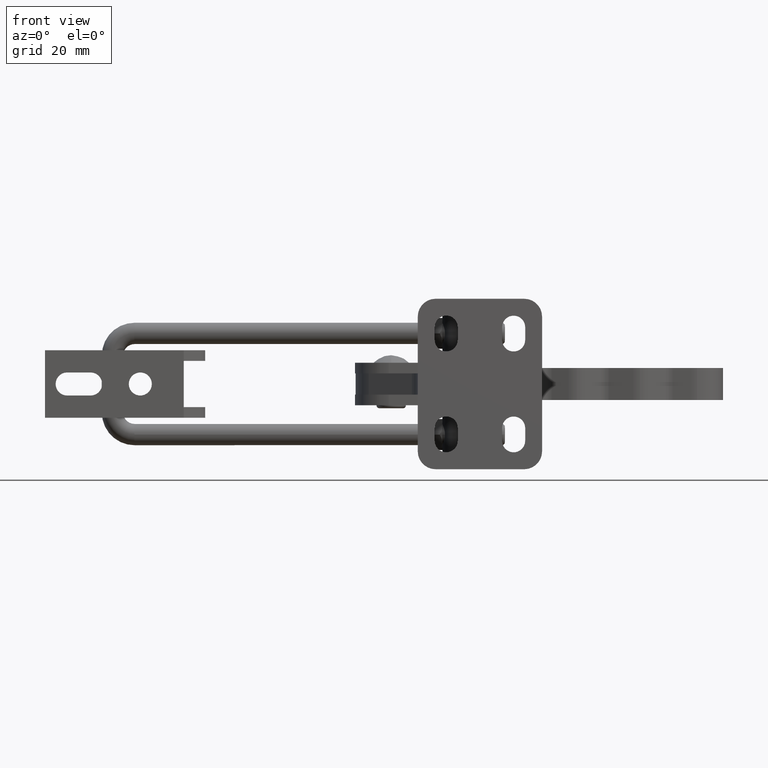
[diagram: clean part render]
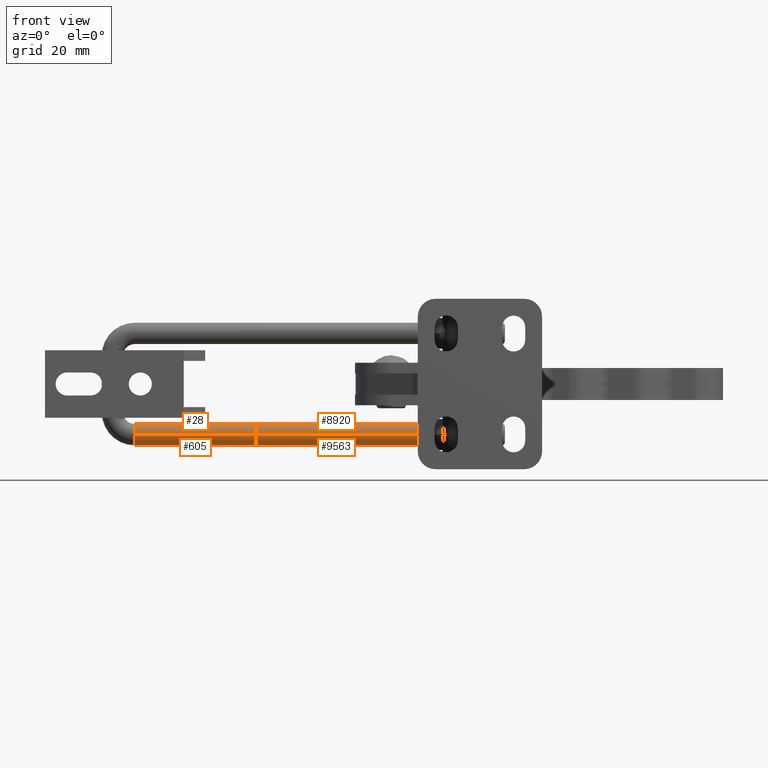
[diagram: same view with one multi-face feature highlighted, each face labeled with its STEP entity id]
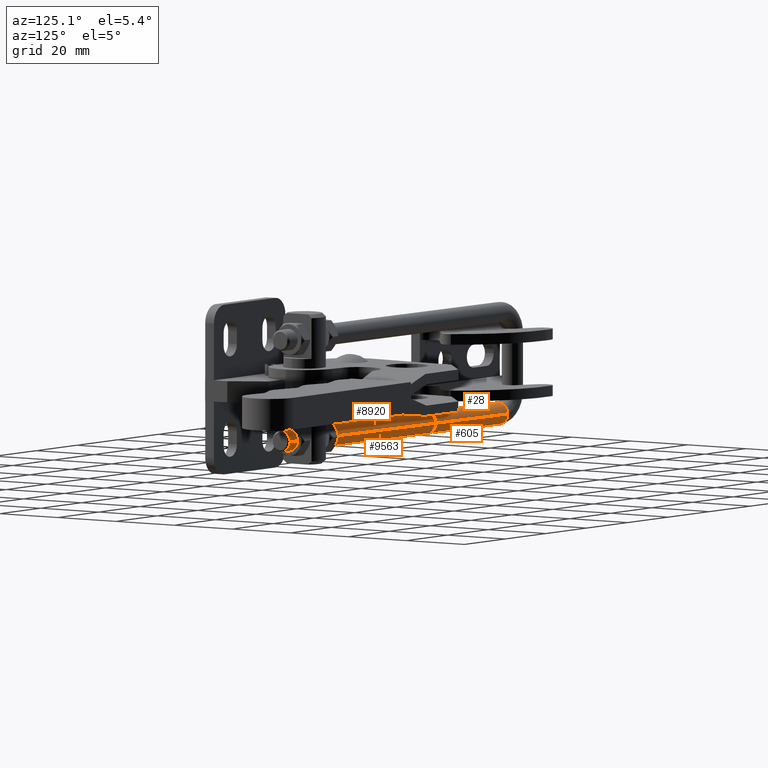
[diagram: same view with one multi-face feature highlighted, each face labeled with its STEP entity id]
A machine part, front view. The highlighted faces form ONE feature: a constant-radius fillet chain: 4 tangent blend faces with common blend radius 3 mm. The faces share edges in the B-rep.
A second angle (auxiliary view) of the same feature is appended — it is thin or edge-on in the first view.
Their STEP definitions:
[1] entity #605 (Cylinder):
#305 = CIRCLE ( 'NONE', #8057, 3.000000000000000400 ) ;
#572 = ORIENTED_EDGE ( 'NONE', *, *, #7284, .F. ) ;
#583 = CIRCLE ( 'NONE', #2443, 3.000000000000000400 ) ;
#605 = ADVANCED_FACE ( 'NONE', ( #892 ), #4617, .T. ) ;
#780 = CARTESIAN_POINT ( 'NONE',  ( -115.4081374499882500, 20.57135910459141600, -17.25000000000051900 ) ) ;
#892 = FACE_OUTER_BOUND ( 'NONE', #8518, .T. ) ;
#925 = ORIENTED_EDGE ( 'NONE', *, *, #5916, .F. ) ;
#1624 = VERTEX_POINT ( 'NONE', #1699 ) ;
#1699 = CARTESIAN_POINT ( 'NONE',  ( -115.4698850797838800, 17.57199463353849100, -14.25000000000051500 ) ) ;
#2063 = VECTOR ( 'NONE', #7595, 1000.000000000000100 ) ;
#2126 = DIRECTION ( 'NONE',  ( 0.9997881570176434500, -0.02058254326520906800, -5.444825059755399700E-017 ) ) ;
#2153 = VERTEX_POINT ( 'NONE', #5836 ) ;
#2182 = LINE ( 'NONE', #9104, #5923 ) ;
#2443 = AXIS2_PLACEMENT_3D ( 'NONE', #7489, #3002, #8240 ) ;
#2828 = CARTESIAN_POINT ( 'NONE',  ( -115.3463898201926100, 23.57072357564435100, -14.25000000000051300 ) ) ;
#2836 = DIRECTION ( 'NONE',  ( -0.9997881570176434500, 0.02058254326520906800, 3.853291467241369100E-016 ) ) ;
#3002 = DIRECTION ( 'NONE',  ( -0.9997881570176434500, 0.02058254326520906800, 3.853291467241369100E-016 ) ) ;
#3147 = DIRECTION ( 'NONE',  ( 0.9997881570176434500, -0.02058254326520906800, -2.628644668094015600E-016 ) ) ;
#3801 = DIRECTION ( 'NONE',  ( 0.9997881570176433400, -0.02058254326520906500, -2.628644668094015600E-016 ) ) ;
#4345 = AXIS2_PLACEMENT_3D ( 'NONE', #6616, #2126, #7353 ) ;
#4617 = CYLINDRICAL_SURFACE ( 'NONE', #9047, 3.000000000000000400 ) ;
#4972 = DIRECTION ( 'NONE',  ( 0.02058254326521106300, 0.9997881570176433400, 5.782411586589355700E-016 ) ) ;
#5045 = ORIENTED_EDGE ( 'NONE', *, *, #9688, .F. ) ;
#5461 = CIRCLE ( 'NONE', #4345, 3.000000000000000900 ) ;
#5487 = VERTEX_POINT ( 'NONE', #8960 ) ;
#5540 = VERTEX_POINT ( 'NONE', #780 ) ;
#5747 = ORIENTED_EDGE ( 'NONE', *, *, #8401, .F. ) ;
#5836 = CARTESIAN_POINT ( 'NONE',  ( -81.23984987408560700, 16.86730416921797700, -14.25000000000052400 ) ) ;
#5916 = EDGE_CURVE ( 'NONE', #2153, #5487, #5461, .T. ) ;
#5923 = VECTOR ( 'NONE', #3801, 1000.000000000000100 ) ;
#6616 = CARTESIAN_POINT ( 'NONE',  ( -81.17810224428997400, 19.86666864027090500, -14.25000000000052600 ) ) ;
#6867 = CARTESIAN_POINT ( 'NONE',  ( -115.4698850797838800, 17.57199463353849100, -14.25000000000051500 ) ) ;
#6892 = CARTESIAN_POINT ( 'NONE',  ( -115.4081374499882500, 20.57135910459141900, -14.25000000000051500 ) ) ;
#7284 = EDGE_CURVE ( 'NONE', #9048, #5540, #305, .T. ) ;
#7335 = CARTESIAN_POINT ( 'NONE',  ( -115.4081374499882500, 20.57135910459141900, -14.25000000000051500 ) ) ;
#7353 = DIRECTION ( 'NONE',  ( 0.0000000000000000000, 0.0000000000000000000, 1.000000000000000000 ) ) ;
#7489 = CARTESIAN_POINT ( 'NONE',  ( -115.4081374499882500, 20.57135910459141900, -14.25000000000051500 ) ) ;
#7523 = EDGE_CURVE ( 'NONE', #9048, #5487, #2182, .T. ) ;
#7595 = DIRECTION ( 'NONE',  ( 0.9997881570176433400, -0.02058254326520906500, -2.628644668094015600E-016 ) ) ;
#7698 = ORIENTED_EDGE ( 'NONE', *, *, #7523, .T. ) ;
#8020 = LINE ( 'NONE', #6867, #2063 ) ;
#8057 = AXIS2_PLACEMENT_3D ( 'NONE', #7335, #2836, #8078 ) ;
#8078 = DIRECTION ( 'NONE',  ( 0.02058254326521106300, 0.9997881570176433400, 5.782411586589355700E-016 ) ) ;
#8240 = DIRECTION ( 'NONE',  ( 0.02058254326521106300, 0.9997881570176433400, 5.782411586589355700E-016 ) ) ;
#8401 = EDGE_CURVE ( 'NONE', #1624, #2153, #8020, .T. ) ;
#8518 = EDGE_LOOP ( 'NONE', ( #5747, #5045, #572, #7698, #925 ) ) ;
#8960 = CARTESIAN_POINT ( 'NONE',  ( -81.11635461449434100, 22.86603311132383700, -14.25000000000052200 ) ) ;
#9047 = AXIS2_PLACEMENT_3D ( 'NONE', #6892, #3147, #4972 ) ;
#9048 = VERTEX_POINT ( 'NONE', #2828 ) ;
#9104 = CARTESIAN_POINT ( 'NONE',  ( -115.3463898201926100, 23.57072357564435100, -14.25000000000051300 ) ) ;
#9688 = EDGE_CURVE ( 'NONE', #5540, #1624, #583, .T. ) ;
[2] entity #9563 (Cylinder):
#307 = EDGE_CURVE ( 'NONE', #5487, #2397, #1015, .T. ) ;
#610 = DIRECTION ( 'NONE',  ( 0.9997881570176433400, -0.02058254326520906500, -2.628644668094015600E-016 ) ) ;
#681 = ORIENTED_EDGE ( 'NONE', *, *, #1174, .F. ) ;
#1015 = LINE ( 'NONE', #6583, #8739 ) ;
#1174 = EDGE_CURVE ( 'NONE', #2153, #1506, #4375, .T. ) ;
#1435 = DIRECTION ( 'NONE',  ( 0.9997881570176433400, -0.02058254326520906500, -2.628644668094015600E-016 ) ) ;
#1506 = VERTEX_POINT ( 'NONE', #5100 ) ;
#1516 = CARTESIAN_POINT ( 'NONE',  ( -11.62107982019796800, 21.43534052895915600, -14.25000000000054200 ) ) ;
#2126 = DIRECTION ( 'NONE',  ( 0.9997881570176434500, -0.02058254326520906800, -5.444825059755399700E-017 ) ) ;
#2153 = VERTEX_POINT ( 'NONE', #5836 ) ;
#2397 = VERTEX_POINT ( 'NONE', #1516 ) ;
#2767 = EDGE_CURVE ( 'NONE', #2397, #1506, #7291, .T. ) ;
#3696 = ORIENTED_EDGE ( 'NONE', *, *, #2767, .T. ) ;
#3812 = DIRECTION ( 'NONE',  ( -0.9997881570176434500, 0.02058254326520906800, 2.628644668094015600E-016 ) ) ;
#4145 = VECTOR ( 'NONE', #1435, 1000.000000000000100 ) ;
#4171 = CARTESIAN_POINT ( 'NONE',  ( -115.4081374499882500, 20.57135910459141900, -14.25000000000051500 ) ) ;
#4176 = ORIENTED_EDGE ( 'NONE', *, *, #5916, .T. ) ;
#4345 = AXIS2_PLACEMENT_3D ( 'NONE', #6616, #2126, #7353 ) ;
#4375 = LINE ( 'NONE', #5973, #4145 ) ;
#4890 = CYLINDRICAL_SURFACE ( 'NONE', #6483, 3.000000000000000400 ) ;
#5012 = EDGE_LOOP ( 'NONE', ( #681, #4176, #9835, #3696 ) ) ;
#5100 = CARTESIAN_POINT ( 'NONE',  ( -11.74457507978920700, 15.43661158685329200, -14.25000000000054400 ) ) ;
#5126 = FACE_OUTER_BOUND ( 'NONE', #5012, .T. ) ;
#5461 = CIRCLE ( 'NONE', #4345, 3.000000000000000900 ) ;
#5487 = VERTEX_POINT ( 'NONE', #8960 ) ;
#5687 = DIRECTION ( 'NONE',  ( 0.9997881570176434500, -0.02058254326520906800, -2.628644668094015600E-016 ) ) ;
#5836 = CARTESIAN_POINT ( 'NONE',  ( -81.23984987408560700, 16.86730416921797700, -14.25000000000052400 ) ) ;
#5916 = EDGE_CURVE ( 'NONE', #2153, #5487, #5461, .T. ) ;
#5973 = CARTESIAN_POINT ( 'NONE',  ( -115.4698850797838800, 17.57199463353849100, -14.25000000000051500 ) ) ;
#6483 = AXIS2_PLACEMENT_3D ( 'NONE', #4171, #5687, #8661 ) ;
#6583 = CARTESIAN_POINT ( 'NONE',  ( -115.3463898201926100, 23.57072357564435100, -14.25000000000051300 ) ) ;
#6616 = CARTESIAN_POINT ( 'NONE',  ( -81.17810224428997400, 19.86666864027090500, -14.25000000000052600 ) ) ;
#7291 = CIRCLE ( 'NONE', #7521, 3.000000000000000400 ) ;
#7353 = DIRECTION ( 'NONE',  ( 0.0000000000000000000, 0.0000000000000000000, 1.000000000000000000 ) ) ;
#7521 = AXIS2_PLACEMENT_3D ( 'NONE', #8322, #3812, #9123 ) ;
#8322 = CARTESIAN_POINT ( 'NONE',  ( -11.68282744999358700, 18.43597605790622400, -14.25000000000054400 ) ) ;
#8661 = DIRECTION ( 'NONE',  ( 0.02058254326521106300, 0.9997881570176433400, 5.782411586589355700E-016 ) ) ;
#8739 = VECTOR ( 'NONE', #610, 1000.000000000000100 ) ;
#8960 = CARTESIAN_POINT ( 'NONE',  ( -81.11635461449434100, 22.86603311132383700, -14.25000000000052200 ) ) ;
#9123 = DIRECTION ( 'NONE',  ( 0.02058254326520932800, 0.9997881570176433400, 5.782411586589355700E-016 ) ) ;
#9563 = ADVANCED_FACE ( 'NONE', ( #5126 ), #4890, .T. ) ;
#9835 = ORIENTED_EDGE ( 'NONE', *, *, #307, .T. ) ;
[3] entity #8920 (Cylinder):
#58 = AXIS2_PLACEMENT_3D ( 'NONE', #1386, #2545, #3888 ) ;
#152 = ORIENTED_EDGE ( 'NONE', *, *, #1174, .T. ) ;
#307 = EDGE_CURVE ( 'NONE', #5487, #2397, #1015, .T. ) ;
#610 = DIRECTION ( 'NONE',  ( 0.9997881570176433400, -0.02058254326520906500, -2.628644668094015600E-016 ) ) ;
#1015 = LINE ( 'NONE', #6583, #8739 ) ;
#1174 = EDGE_CURVE ( 'NONE', #2153, #1506, #4375, .T. ) ;
#1291 = DIRECTION ( 'NONE',  ( 0.9997881570176434500, -0.02058254326520906800, -5.444825059755399700E-017 ) ) ;
#1386 = CARTESIAN_POINT ( 'NONE',  ( -11.68282744999358700, 18.43597605790622400, -14.25000000000054400 ) ) ;
#1435 = DIRECTION ( 'NONE',  ( 0.9997881570176433400, -0.02058254326520906500, -2.628644668094015600E-016 ) ) ;
#1506 = VERTEX_POINT ( 'NONE', #5100 ) ;
#1516 = CARTESIAN_POINT ( 'NONE',  ( -11.62107982019796800, 21.43534052895915600, -14.25000000000054200 ) ) ;
#1850 = EDGE_CURVE ( 'NONE', #1506, #2397, #3772, .T. ) ;
#2107 = ORIENTED_EDGE ( 'NONE', *, *, #1850, .T. ) ;
#2153 = VERTEX_POINT ( 'NONE', #5836 ) ;
#2397 = VERTEX_POINT ( 'NONE', #1516 ) ;
#2545 = DIRECTION ( 'NONE',  ( -0.9997881570176434500, 0.02058254326520906800, 2.628644668094015600E-016 ) ) ;
#2547 = EDGE_CURVE ( 'NONE', #5487, #2153, #7417, .T. ) ;
#3772 = CIRCLE ( 'NONE', #58, 3.000000000000000400 ) ;
#3888 = DIRECTION ( 'NONE',  ( 0.02058254326520932800, 0.9997881570176433400, 5.782411586589355700E-016 ) ) ;
#4145 = VECTOR ( 'NONE', #1435, 1000.000000000000100 ) ;
#4375 = LINE ( 'NONE', #5973, #4145 ) ;
#4743 = CARTESIAN_POINT ( 'NONE',  ( -115.4081374499882500, 20.57135910459141900, -14.25000000000051500 ) ) ;
#4772 = DIRECTION ( 'NONE',  ( 0.02058254326521106300, 0.9997881570176433400, 5.782411586589355700E-016 ) ) ;
#5100 = CARTESIAN_POINT ( 'NONE',  ( -11.74457507978920700, 15.43661158685329200, -14.25000000000054400 ) ) ;
#5206 = EDGE_LOOP ( 'NONE', ( #9326, #152, #2107, #6935 ) ) ;
#5487 = VERTEX_POINT ( 'NONE', #8960 ) ;
#5544 = DIRECTION ( 'NONE',  ( 0.9997881570176434500, -0.02058254326520906800, -2.628644668094015600E-016 ) ) ;
#5648 = CYLINDRICAL_SURFACE ( 'NONE', #8610, 3.000000000000000400 ) ;
#5768 = CARTESIAN_POINT ( 'NONE',  ( -81.17810224428997400, 19.86666864027090500, -14.25000000000052600 ) ) ;
#5836 = CARTESIAN_POINT ( 'NONE',  ( -81.23984987408560700, 16.86730416921797700, -14.25000000000052400 ) ) ;
#5973 = CARTESIAN_POINT ( 'NONE',  ( -115.4698850797838800, 17.57199463353849100, -14.25000000000051500 ) ) ;
#6541 = DIRECTION ( 'NONE',  ( 0.0000000000000000000, 0.0000000000000000000, 1.000000000000000000 ) ) ;
#6583 = CARTESIAN_POINT ( 'NONE',  ( -115.3463898201926100, 23.57072357564435100, -14.25000000000051300 ) ) ;
#6935 = ORIENTED_EDGE ( 'NONE', *, *, #307, .F. ) ;
#7417 = CIRCLE ( 'NONE', #7882, 3.000000000000000900 ) ;
#7882 = AXIS2_PLACEMENT_3D ( 'NONE', #5768, #1291, #6541 ) ;
#7883 = FACE_OUTER_BOUND ( 'NONE', #5206, .T. ) ;
#8610 = AXIS2_PLACEMENT_3D ( 'NONE', #4743, #5544, #4772 ) ;
#8739 = VECTOR ( 'NONE', #610, 1000.000000000000100 ) ;
#8920 = ADVANCED_FACE ( 'NONE', ( #7883 ), #5648, .T. ) ;
#8960 = CARTESIAN_POINT ( 'NONE',  ( -81.11635461449434100, 22.86603311132383700, -14.25000000000052200 ) ) ;
#9326 = ORIENTED_EDGE ( 'NONE', *, *, #2547, .T. ) ;
[4] entity #28 (Cylinder):
#28 = ADVANCED_FACE ( 'NONE', ( #98 ), #3577, .T. ) ;
#98 = FACE_OUTER_BOUND ( 'NONE', #2445, .T. ) ;
#378 = ORIENTED_EDGE ( 'NONE', *, *, #8401, .T. ) ;
#1291 = DIRECTION ( 'NONE',  ( 0.9997881570176434500, -0.02058254326520906800, -5.444825059755399700E-017 ) ) ;
#1355 = ORIENTED_EDGE ( 'NONE', *, *, #7523, .F. ) ;
#1474 = CIRCLE ( 'NONE', #8407, 3.000000000000000400 ) ;
#1624 = VERTEX_POINT ( 'NONE', #1699 ) ;
#1699 = CARTESIAN_POINT ( 'NONE',  ( -115.4698850797838800, 17.57199463353849100, -14.25000000000051500 ) ) ;
#1806 = CARTESIAN_POINT ( 'NONE',  ( -115.4081374499882500, 20.57135910459141900, -14.25000000000051500 ) ) ;
#2063 = VECTOR ( 'NONE', #7595, 1000.000000000000100 ) ;
#2153 = VERTEX_POINT ( 'NONE', #5836 ) ;
#2182 = LINE ( 'NONE', #9104, #5923 ) ;
#2445 = EDGE_LOOP ( 'NONE', ( #7491, #378, #9812, #1355, #3999 ) ) ;
#2540 = DIRECTION ( 'NONE',  ( 0.02058254326521106300, 0.9997881570176433400, 5.782411586589355700E-016 ) ) ;
#2547 = EDGE_CURVE ( 'NONE', #5487, #2153, #7417, .T. ) ;
#2700 = CARTESIAN_POINT ( 'NONE',  ( -115.4081374499882500, 20.57135910459141900, -14.25000000000051500 ) ) ;
#2828 = CARTESIAN_POINT ( 'NONE',  ( -115.3463898201926100, 23.57072357564435100, -14.25000000000051300 ) ) ;
#3447 = DIRECTION ( 'NONE',  ( 0.02058254326521106300, 0.9997881570176433400, 5.782411586589355700E-016 ) ) ;
#3577 = CYLINDRICAL_SURFACE ( 'NONE', #3649, 3.000000000000000400 ) ;
#3649 = AXIS2_PLACEMENT_3D ( 'NONE', #4053, #5531, #7859 ) ;
#3801 = DIRECTION ( 'NONE',  ( 0.9997881570176433400, -0.02058254326520906500, -2.628644668094015600E-016 ) ) ;
#3999 = ORIENTED_EDGE ( 'NONE', *, *, #7653, .F. ) ;
#4053 = CARTESIAN_POINT ( 'NONE',  ( -115.4081374499882500, 20.57135910459141900, -14.25000000000051500 ) ) ;
#5487 = VERTEX_POINT ( 'NONE', #8960 ) ;
#5531 = DIRECTION ( 'NONE',  ( 0.9997881570176434500, -0.02058254326520906800, -2.628644668094015600E-016 ) ) ;
#5768 = CARTESIAN_POINT ( 'NONE',  ( -81.17810224428997400, 19.86666864027090500, -14.25000000000052600 ) ) ;
#5836 = CARTESIAN_POINT ( 'NONE',  ( -81.23984987408560700, 16.86730416921797700, -14.25000000000052400 ) ) ;
#5923 = VECTOR ( 'NONE', #3801, 1000.000000000000100 ) ;
#6151 = CIRCLE ( 'NONE', #7779, 3.000000000000000400 ) ;
#6541 = DIRECTION ( 'NONE',  ( 0.0000000000000000000, 0.0000000000000000000, 1.000000000000000000 ) ) ;
#6867 = CARTESIAN_POINT ( 'NONE',  ( -115.4698850797838800, 17.57199463353849100, -14.25000000000051500 ) ) ;
#7043 = DIRECTION ( 'NONE',  ( -0.9997881570176434500, 0.02058254326520906800, 3.853291467241369100E-016 ) ) ;
#7417 = CIRCLE ( 'NONE', #7882, 3.000000000000000900 ) ;
#7491 = ORIENTED_EDGE ( 'NONE', *, *, #8692, .F. ) ;
#7523 = EDGE_CURVE ( 'NONE', #9048, #5487, #2182, .T. ) ;
#7595 = DIRECTION ( 'NONE',  ( 0.9997881570176433400, -0.02058254326520906500, -2.628644668094015600E-016 ) ) ;
#7653 = EDGE_CURVE ( 'NONE', #8496, #9048, #1474, .T. ) ;
#7779 = AXIS2_PLACEMENT_3D ( 'NONE', #2700, #7950, #3447 ) ;
#7859 = DIRECTION ( 'NONE',  ( 0.02058254326521106300, 0.9997881570176433400, 5.782411586589355700E-016 ) ) ;
#7882 = AXIS2_PLACEMENT_3D ( 'NONE', #5768, #1291, #6541 ) ;
#7950 = DIRECTION ( 'NONE',  ( -0.9997881570176434500, 0.02058254326520906800, 3.853291467241369100E-016 ) ) ;
#8020 = LINE ( 'NONE', #6867, #2063 ) ;
#8401 = EDGE_CURVE ( 'NONE', #1624, #2153, #8020, .T. ) ;
#8407 = AXIS2_PLACEMENT_3D ( 'NONE', #1806, #7043, #2540 ) ;
#8496 = VERTEX_POINT ( 'NONE', #9252 ) ;
#8692 = EDGE_CURVE ( 'NONE', #1624, #8496, #6151, .T. ) ;
#8960 = CARTESIAN_POINT ( 'NONE',  ( -81.11635461449434100, 22.86603311132383700, -14.25000000000052200 ) ) ;
#9048 = VERTEX_POINT ( 'NONE', #2828 ) ;
#9104 = CARTESIAN_POINT ( 'NONE',  ( -115.3463898201926100, 23.57072357564435100, -14.25000000000051300 ) ) ;
#9252 = CARTESIAN_POINT ( 'NONE',  ( -115.4081374499882500, 20.57135910459141600, -11.25000000000051500 ) ) ;
#9812 = ORIENTED_EDGE ( 'NONE', *, *, #2547, .F. ) ;